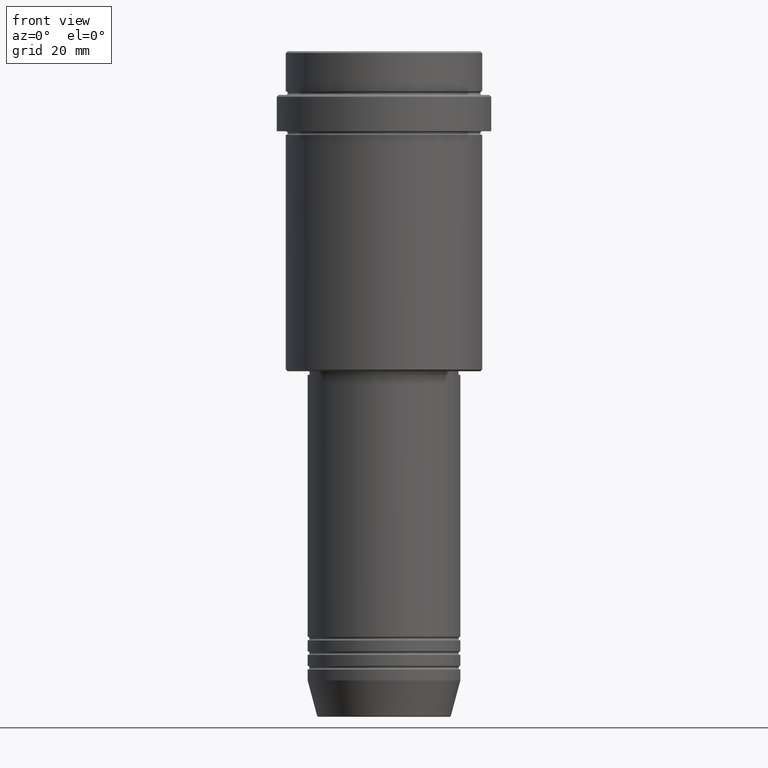
[diagram: clean part render]
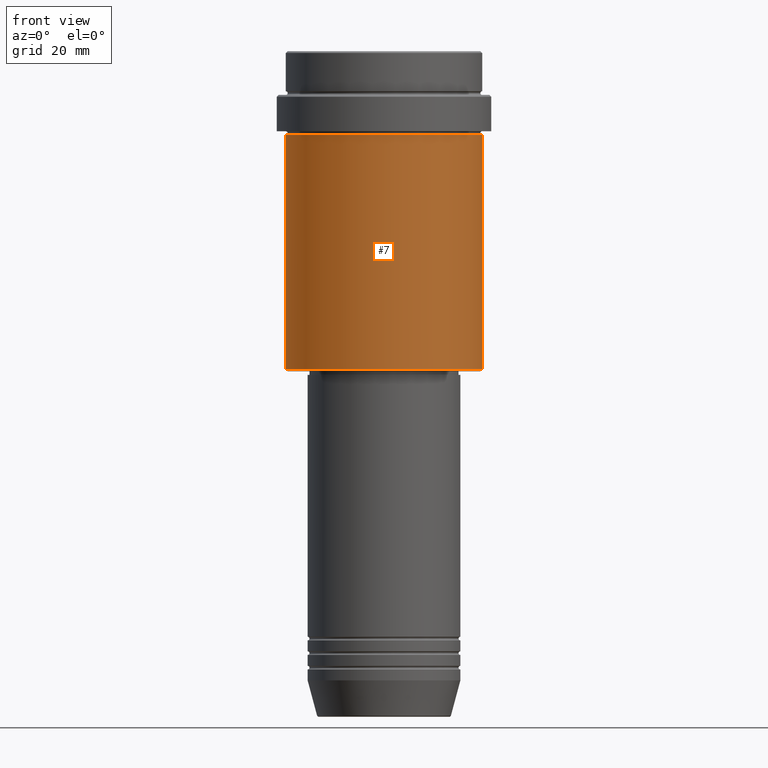
[diagram: same view with one face highlighted and labeled with its STEP entity id]
A machine part, front view. The second image highlights one B-rep face of the part: STEP entity #7.
In plain terms, the highlighted cylindrical surface (partial cylindrical patch) has radius 27 mm, axis along (-0, -0, 1).
Its self-contained STEP definition (entity closure, byte-faithful):
#7 = ADVANCED_FACE ( 'NONE', ( #303 ), #1156, .T. ) ;
#67 = DIRECTION ( 'NONE',  ( -0.000000000000000000, -0.000000000000000000, 1.000000000000000000 ) ) ;
#79 = EDGE_CURVE ( 'NONE', #1225, #1182, #455, .T. ) ;
#95 = CARTESIAN_POINT ( 'NONE',  ( 0.000000000000000000, 0.000000000000000000, -23.00000000000000000 ) ) ;
#165 = CARTESIAN_POINT ( 'NONE',  ( 27.00000000000000355, 0.000000000000000000, 0.000000000000000000 ) ) ;
#175 = EDGE_CURVE ( 'NONE', #1225, #1068, #1083, .T. ) ;
#250 = EDGE_LOOP ( 'NONE', ( #409, #1209, #408, #586 ) ) ;
#303 = FACE_OUTER_BOUND ( 'NONE', #250, .T. ) ;
#355 = CARTESIAN_POINT ( 'NONE',  ( -27.00000000000000355, 3.306546357697854128E-15, -23.00000000000000000 ) ) ;
#358 = DIRECTION ( 'NONE',  ( -1.000000000000000000, 0.000000000000000000, 0.000000000000000000 ) ) ;
#381 = CARTESIAN_POINT ( 'NONE',  ( 27.00000000000000355, 0.000000000000000000, -87.49999999999998579 ) ) ;
#382 = DIRECTION ( 'NONE',  ( -0.000000000000000000, -0.000000000000000000, 1.000000000000000000 ) ) ;
#385 = CARTESIAN_POINT ( 'NONE',  ( -27.00000000000000355, 3.306546357697854128E-15, -87.49999999999998579 ) ) ;
#406 = CIRCLE ( 'NONE', #892, 27.00000000000000355 ) ;
#408 = ORIENTED_EDGE ( 'NONE', *, *, #775, .T. ) ;
#409 = ORIENTED_EDGE ( 'NONE', *, *, #175, .F. ) ;
#455 = CIRCLE ( 'NONE', #688, 27.00000000000000355 ) ;
#485 = VECTOR ( 'NONE', #382, 1000.000000000000000 ) ;
#522 = CARTESIAN_POINT ( 'NONE',  ( 0.000000000000000000, 0.000000000000000000, -87.49999999999998579 ) ) ;
#541 = DIRECTION ( 'NONE',  ( -0.000000000000000000, -0.000000000000000000, 1.000000000000000000 ) ) ;
#585 = DIRECTION ( 'NONE',  ( -0.000000000000000000, -0.000000000000000000, 1.000000000000000000 ) ) ;
#586 = ORIENTED_EDGE ( 'NONE', *, *, #1247, .F. ) ;
#611 = DIRECTION ( 'NONE',  ( 1.000000000000000000, 0.000000000000000000, 0.000000000000000000 ) ) ;
#637 = DIRECTION ( 'NONE',  ( -0.000000000000000000, -0.000000000000000000, 1.000000000000000000 ) ) ;
#688 = AXIS2_PLACEMENT_3D ( 'NONE', #522, #585, #358 ) ;
#731 = AXIS2_PLACEMENT_3D ( 'NONE', #1045, #67, #611 ) ;
#735 = DIRECTION ( 'NONE',  ( 1.000000000000000000, 0.000000000000000000, 0.000000000000000000 ) ) ;
#769 = CARTESIAN_POINT ( 'NONE',  ( 27.00000000000000355, 0.000000000000000000, -23.00000000000000000 ) ) ;
#775 = EDGE_CURVE ( 'NONE', #1182, #975, #1144, .T. ) ;
#892 = AXIS2_PLACEMENT_3D ( 'NONE', #95, #637, #735 ) ;
#975 = VERTEX_POINT ( 'NONE', #769 ) ;
#1023 = CARTESIAN_POINT ( 'NONE',  ( -27.00000000000000355, 3.306546357697854128E-15, 0.000000000000000000 ) ) ;
#1045 = CARTESIAN_POINT ( 'NONE',  ( 0.000000000000000000, 0.000000000000000000, 0.000000000000000000 ) ) ;
#1068 = VERTEX_POINT ( 'NONE', #355 ) ;
#1083 = LINE ( 'NONE', #1023, #1398 ) ;
#1144 = LINE ( 'NONE', #165, #485 ) ;
#1156 = CYLINDRICAL_SURFACE ( 'NONE', #731, 27.00000000000000355 ) ;
#1182 = VERTEX_POINT ( 'NONE', #381 ) ;
#1209 = ORIENTED_EDGE ( 'NONE', *, *, #79, .T. ) ;
#1225 = VERTEX_POINT ( 'NONE', #385 ) ;
#1247 = EDGE_CURVE ( 'NONE', #1068, #975, #406, .T. ) ;
#1398 = VECTOR ( 'NONE', #541, 1000.000000000000000 ) ;